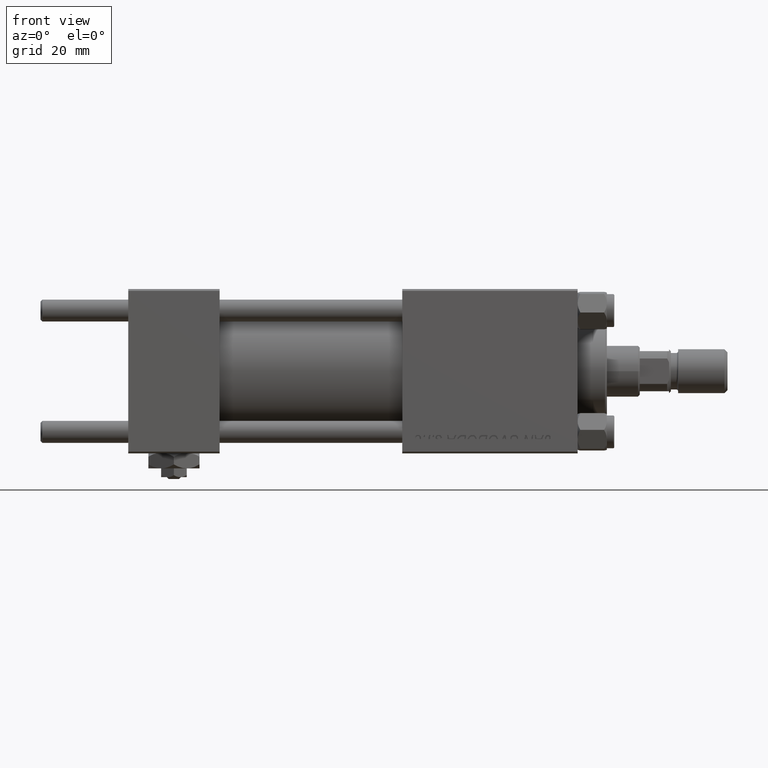
[diagram: clean part render]
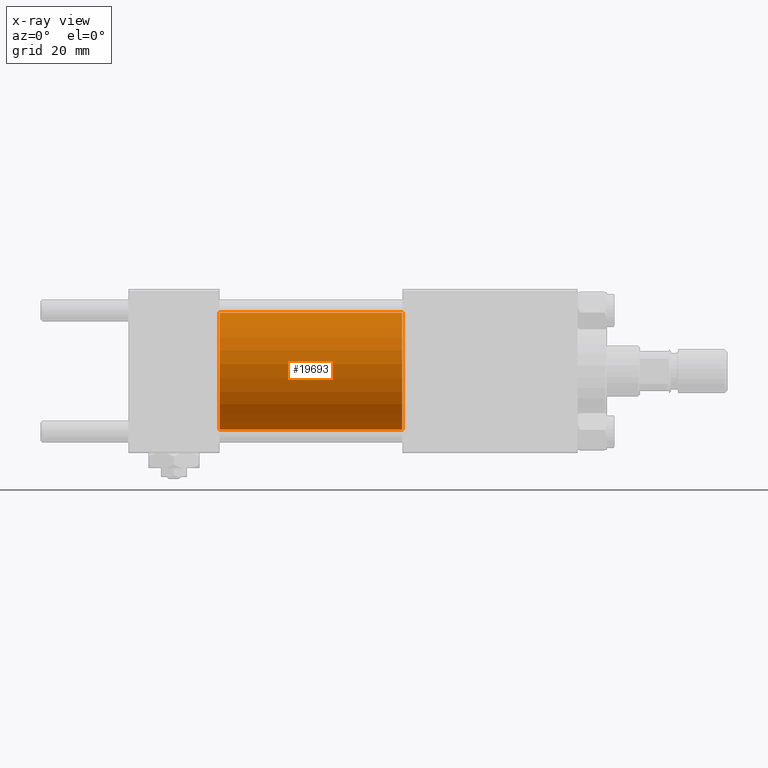
[diagram: x-ray — body ghosted, one internal face saturated and labeled with its STEP entity id]
A machine part, front view, then the same camera in x-ray: the body is ghosted and one INTERNAL B-rep face — a face not visible from any outside direction — is saturated and labeled: STEP entity #19693.
In plain terms, the highlighted cylindrical surface (partial cylindrical patch) has radius 16 mm, axis along (-1, -0, -0).
Its self-contained STEP definition (entity closure, byte-faithful):
#205 = CARTESIAN_POINT ( 'NONE',  ( 75.00000000000001421, 1.959434878635765131E-15, -16.00000000000000000 ) ) ;
#716 = LINE ( 'NONE', #21790, #24903 ) ;
#3076 = CARTESIAN_POINT ( 'NONE',  ( 75.00000000000001421, 1.959434878635765131E-15, -16.00000000000000000 ) ) ;
#3384 = DIRECTION ( 'NONE',  ( -1.000000000000000000, -0.000000000000000000, -0.000000000000000000 ) ) ;
#3448 = VERTEX_POINT ( 'NONE', #15065 ) ;
#7780 = AXIS2_PLACEMENT_3D ( 'NONE', #12481, #28570, #44690 ) ;
#8562 = ORIENTED_EDGE ( 'NONE', *, *, #24274, .F. ) ;
#9595 = VECTOR ( 'NONE', #3384, 1000.000000000000000 ) ;
#9925 = DIRECTION ( 'NONE',  ( -1.000000000000000000, -0.000000000000000000, -0.000000000000000000 ) ) ;
#10134 = CARTESIAN_POINT ( 'NONE',  ( 25.00000000000000000, 0.000000000000000000, 0.000000000000000000 ) ) ;
#10257 = DIRECTION ( 'NONE',  ( 1.000000000000000000, 0.000000000000000000, 0.000000000000000000 ) ) ;
#12481 = CARTESIAN_POINT ( 'NONE',  ( 75.00000000000001421, 0.000000000000000000, 0.000000000000000000 ) ) ;
#15065 = CARTESIAN_POINT ( 'NONE',  ( 25.00000000000000000, 0.000000000000000000, 16.00000000000000000 ) ) ;
#19693 = ADVANCED_FACE ( 'NONE', ( #32543 ), #48649, .F. ) ;
#21010 = ORIENTED_EDGE ( 'NONE', *, *, #30411, .F. ) ;
#21602 = CARTESIAN_POINT ( 'NONE',  ( 75.00000000000001421, 0.000000000000000000, 0.000000000000000000 ) ) ;
#21790 = CARTESIAN_POINT ( 'NONE',  ( 75.00000000000001421, 0.000000000000000000, 16.00000000000000000 ) ) ;
#23792 = EDGE_CURVE ( 'NONE', #40586, #40056, #35832, .T. ) ;
#24274 = EDGE_CURVE ( 'NONE', #3448, #40056, #43354, .T. ) ;
#24315 = VERTEX_POINT ( 'NONE', #49752 ) ;
#24903 = VECTOR ( 'NONE', #9925, 1000.000000000000000 ) ;
#26093 = DIRECTION ( 'NONE',  ( 0.000000000000000000, 0.000000000000000000, -1.000000000000000000 ) ) ;
#26212 = EDGE_LOOP ( 'NONE', ( #46434, #33399, #8562, #21010 ) ) ;
#26580 = CIRCLE ( 'NONE', #40038, 16.00000000000000000 ) ;
#27000 = EDGE_CURVE ( 'NONE', #24315, #40586, #26580, .T. ) ;
#28152 = AXIS2_PLACEMENT_3D ( 'NONE', #10134, #42598, #50784 ) ;
#28570 = DIRECTION ( 'NONE',  ( -1.000000000000000000, -0.000000000000000000, -0.000000000000000000 ) ) ;
#30411 = EDGE_CURVE ( 'NONE', #24315, #3448, #716, .T. ) ;
#30676 = CARTESIAN_POINT ( 'NONE',  ( 25.00000000000000000, 1.959434878635765131E-15, -16.00000000000000000 ) ) ;
#32543 = FACE_OUTER_BOUND ( 'NONE', #26212, .T. ) ;
#33399 = ORIENTED_EDGE ( 'NONE', *, *, #23792, .T. ) ;
#35832 = LINE ( 'NONE', #205, #9595 ) ;
#40038 = AXIS2_PLACEMENT_3D ( 'NONE', #21602, #10257, #26093 ) ;
#40056 = VERTEX_POINT ( 'NONE', #30676 ) ;
#40586 = VERTEX_POINT ( 'NONE', #3076 ) ;
#42598 = DIRECTION ( 'NONE',  ( 1.000000000000000000, 0.000000000000000000, 0.000000000000000000 ) ) ;
#43354 = CIRCLE ( 'NONE', #28152, 16.00000000000000000 ) ;
#44690 = DIRECTION ( 'NONE',  ( 0.000000000000000000, 0.000000000000000000, 1.000000000000000000 ) ) ;
#46434 = ORIENTED_EDGE ( 'NONE', *, *, #27000, .T. ) ;
#48649 = CYLINDRICAL_SURFACE ( 'NONE', #7780, 16.00000000000000000 ) ;
#49752 = CARTESIAN_POINT ( 'NONE',  ( 75.00000000000001421, 0.000000000000000000, 16.00000000000000000 ) ) ;
#50784 = DIRECTION ( 'NONE',  ( 0.000000000000000000, 0.000000000000000000, -1.000000000000000000 ) ) ;